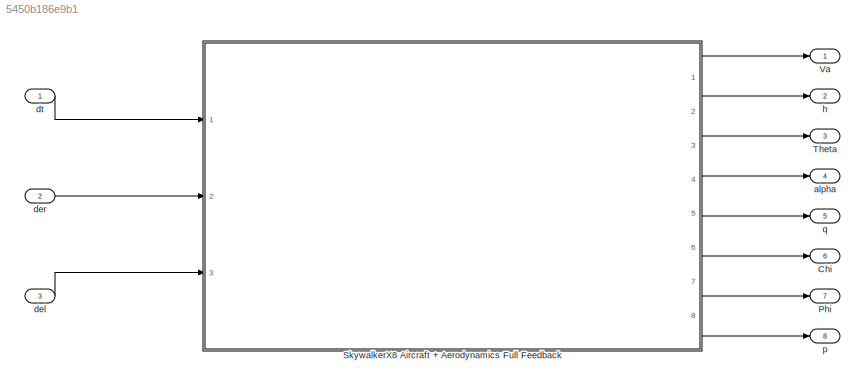
MODEL slx_5450b186e9b1
KIND model
CONFIG AbsTol = auto
CONFIG EnableMultiTasking = off
CONFIG FixedStep = 0.001
CONFIG MaxStep = auto
CONFIG MinStep = auto
CONFIG RelTol = 1e-3
CONFIG SampleTimeConstraint = Unconstrained
CONFIG Solver = FixedStepAuto
CONFIG SolverName = FixedStepAuto
CONFIG StartTime = 0.0
CONFIG StopTime = 10.0
BLOCK [Outport] Chi
  IconDisplay = Port number
  Port = 6
BLOCK [Outport] Phi
  IconDisplay = Port number
  Port = 7
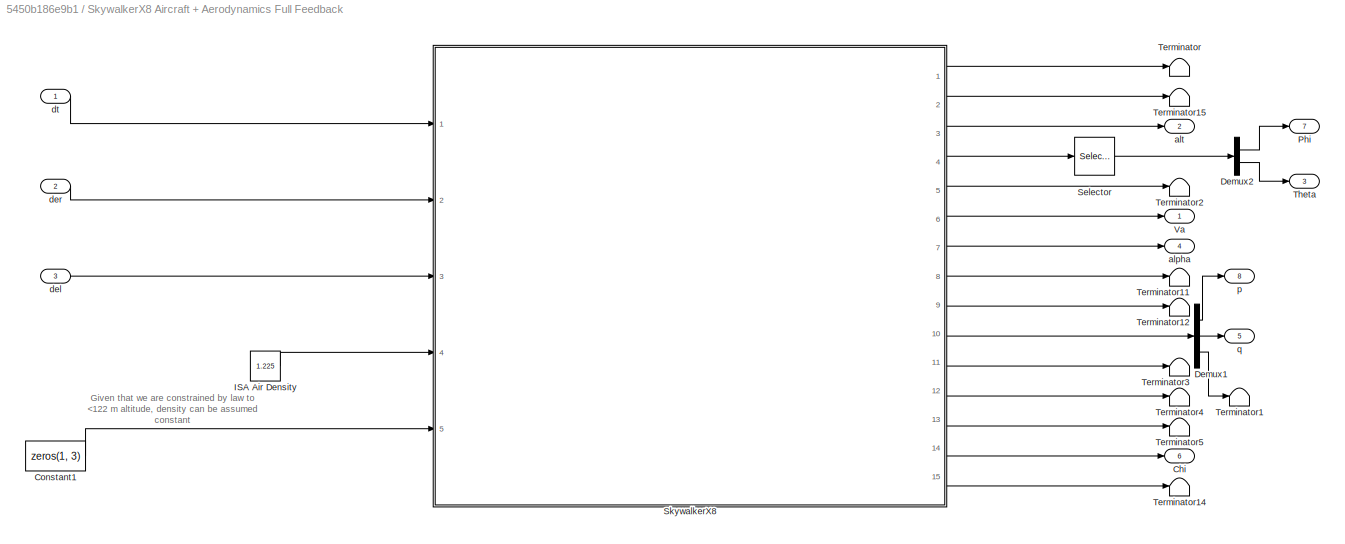
BLOCK [SubSystem] SkywalkerX8 Aircraft + Aerodynamics Full Feedback
  Ports = [3, 8]
  RequestExecContextInheritance = off
BLOCK [Outport] SkywalkerX8 Aircraft + Aerodynamics Full Feedback/Chi
  IconDisplay = Port number
  Port = 6
BLOCK [Constant] SkywalkerX8 Aircraft + Aerodynamics Full Feedback/Constant1
  Value = zeros(1, 3)
BLOCK [Demux] SkywalkerX8 Aircraft + Aerodynamics Full Feedback/Demux1
  DisplayOption = bar
  Outputs = 3
  Ports = [1, 3]
BLOCK [Demux] SkywalkerX8 Aircraft + Aerodynamics Full Feedback/Demux2
  DisplayOption = bar
  Outputs = 2
  Ports = [1, 2]
BLOCK [Constant] SkywalkerX8 Aircraft + Aerodynamics Full Feedback/ISA Air Density
  Value = 1.225
BLOCK [Outport] SkywalkerX8 Aircraft + Aerodynamics Full Feedback/Phi
  IconDisplay = Port number
  Port = 7
BLOCK [Selector] SkywalkerX8 Aircraft + Aerodynamics Full Feedback/Selector
  IndexOptions = Index vector (dialog)
  Indices = [1 2]
  InputPortWidth = 3
  OutputSizes = 1
  Ports = [1, 1]
BLOCK [ModelReference] SkywalkerX8 Aircraft + Aerodynamics Full Feedback/SkywalkerX8
  ModelNameDialog = SkywalkerX8_AircraftModel
  ModelReferenceVersion = 1.367
  Ports = [5, 15]
BLOCK [Terminator] SkywalkerX8 Aircraft + Aerodynamics Full Feedback/Terminator
BLOCK [Terminator] SkywalkerX8 Aircraft + Aerodynamics Full Feedback/Terminator1
BLOCK [Terminator] SkywalkerX8 Aircraft + Aerodynamics Full Feedback/Terminator11
BLOCK [Terminator] SkywalkerX8 Aircraft + Aerodynamics Full Feedback/Terminator12
BLOCK [Terminator] SkywalkerX8 Aircraft + Aerodynamics Full Feedback/Terminator14
BLOCK [Terminator] SkywalkerX8 Aircraft + Aerodynamics Full Feedback/Terminator15
BLOCK [Terminator] SkywalkerX8 Aircraft + Aerodynamics Full Feedback/Terminator2
BLOCK [Terminator] SkywalkerX8 Aircraft + Aerodynamics Full Feedback/Terminator3
BLOCK [Terminator] SkywalkerX8 Aircraft + Aerodynamics Full Feedback/Terminator4
BLOCK [Terminator] SkywalkerX8 Aircraft + Aerodynamics Full Feedback/Terminator5
BLOCK [Outport] SkywalkerX8 Aircraft + Aerodynamics Full Feedback/Theta
  IconDisplay = Port number
  Port = 3
BLOCK [Outport] SkywalkerX8 Aircraft + Aerodynamics Full Feedback/Va
  IconDisplay = Port number
BLOCK [Outport] SkywalkerX8 Aircraft + Aerodynamics Full Feedback/alpha
  IconDisplay = Port number
  Port = 4
BLOCK [Outport] SkywalkerX8 Aircraft + Aerodynamics Full Feedback/alt
  IconDisplay = Port number
  Port = 2
BLOCK [Inport] SkywalkerX8 Aircraft + Aerodynamics Full Feedback/del
  IconDisplay = Port number
  Port = 3
BLOCK [Inport] SkywalkerX8 Aircraft + Aerodynamics Full Feedback/der
  IconDisplay = Port number
  Port = 2
BLOCK [Inport] SkywalkerX8 Aircraft + Aerodynamics Full Feedback/dt
  IconDisplay = Port number
BLOCK [Outport] SkywalkerX8 Aircraft + Aerodynamics Full Feedback/p
  IconDisplay = Port number
  Port = 8
BLOCK [Outport] SkywalkerX8 Aircraft + Aerodynamics Full Feedback/q
  IconDisplay = Port number
  Port = 5
BLOCK [Outport] Theta
  IconDisplay = Port number
  Port = 3
BLOCK [Outport] Va
  IconDisplay = Port number
BLOCK [Outport] alpha
  IconDisplay = Port number
  Port = 4
BLOCK [Inport] del
  IconDisplay = Port number
  Port = 3
BLOCK [Inport] der
  IconDisplay = Port number
  Port = 2
BLOCK [Inport] dt
  IconDisplay = Port number
BLOCK [Outport] h
  IconDisplay = Port number
  Port = 2
BLOCK [Outport] p
  IconDisplay = Port number
  Port = 8
BLOCK [Outport] q
  IconDisplay = Port number
  Port = 5
ANNOTATION SkywalkerX8 Aircraft + Aerodynamics Full Feedback: Given that we are constrained by law to <122 m altitude, density can be assumed constant
LINE SkywalkerX8 Aircraft + Aerodynamics Full Feedback/Constant1:1 -> SkywalkerX8 Aircraft + Aerodynamics Full Feedback/SkywalkerX8:5
LINE SkywalkerX8 Aircraft + Aerodynamics Full Feedback/Demux1:1 -> SkywalkerX8 Aircraft + Aerodynamics Full Feedback/p:1
LINE SkywalkerX8 Aircraft + Aerodynamics Full Feedback/Demux1:2 -> SkywalkerX8 Aircraft + Aerodynamics Full Feedback/q:1
LINE SkywalkerX8 Aircraft + Aerodynamics Full Feedback/Demux1:3 -> SkywalkerX8 Aircraft + Aerodynamics Full Feedback/Terminator1:1
LINE SkywalkerX8 Aircraft + Aerodynamics Full Feedback/Demux2:1 -> SkywalkerX8 Aircraft + Aerodynamics Full Feedback/Phi:1
LINE SkywalkerX8 Aircraft + Aerodynamics Full Feedback/Demux2:2 -> SkywalkerX8 Aircraft + Aerodynamics Full Feedback/Theta:1
LINE SkywalkerX8 Aircraft + Aerodynamics Full Feedback/ISA Air Density:1 -> SkywalkerX8 Aircraft + Aerodynamics Full Feedback/SkywalkerX8:4
LINE SkywalkerX8 Aircraft + Aerodynamics Full Feedback/Selector:1 -> SkywalkerX8 Aircraft + Aerodynamics Full Feedback/Demux2:1
LINE SkywalkerX8 Aircraft + Aerodynamics Full Feedback/SkywalkerX8:1 -> SkywalkerX8 Aircraft + Aerodynamics Full Feedback/Terminator:1
LINE SkywalkerX8 Aircraft + Aerodynamics Full Feedback/SkywalkerX8:10 -> SkywalkerX8 Aircraft + Aerodynamics Full Feedback/Demux1:1
LINE SkywalkerX8 Aircraft + Aerodynamics Full Feedback/SkywalkerX8:11 -> SkywalkerX8 Aircraft + Aerodynamics Full Feedback/Terminator3:1
LINE SkywalkerX8 Aircraft + Aerodynamics Full Feedback/SkywalkerX8:12 -> SkywalkerX8 Aircraft + Aerodynamics Full Feedback/Terminator4:1
LINE SkywalkerX8 Aircraft + Aerodynamics Full Feedback/SkywalkerX8:13 -> SkywalkerX8 Aircraft + Aerodynamics Full Feedback/Terminator5:1
LINE SkywalkerX8 Aircraft + Aerodynamics Full Feedback/SkywalkerX8:14 -> SkywalkerX8 Aircraft + Aerodynamics Full Feedback/Chi:1
LINE SkywalkerX8 Aircraft + Aerodynamics Full Feedback/SkywalkerX8:15 -> SkywalkerX8 Aircraft + Aerodynamics Full Feedback/Terminator14:1
LINE SkywalkerX8 Aircraft + Aerodynamics Full Feedback/SkywalkerX8:2 -> SkywalkerX8 Aircraft + Aerodynamics Full Feedback/Terminator15:1
LINE SkywalkerX8 Aircraft + Aerodynamics Full Feedback/SkywalkerX8:3 -> SkywalkerX8 Aircraft + Aerodynamics Full Feedback/alt:1
LINE SkywalkerX8 Aircraft + Aerodynamics Full Feedback/SkywalkerX8:4 -> SkywalkerX8 Aircraft + Aerodynamics Full Feedback/Selector:1
LINE SkywalkerX8 Aircraft + Aerodynamics Full Feedback/SkywalkerX8:5 -> SkywalkerX8 Aircraft + Aerodynamics Full Feedback/Terminator2:1
LINE SkywalkerX8 Aircraft + Aerodynamics Full Feedback/SkywalkerX8:6 -> SkywalkerX8 Aircraft + Aerodynamics Full Feedback/Va:1
LINE SkywalkerX8 Aircraft + Aerodynamics Full Feedback/SkywalkerX8:7 -> SkywalkerX8 Aircraft + Aerodynamics Full Feedback/alpha:1
LINE SkywalkerX8 Aircraft + Aerodynamics Full Feedback/SkywalkerX8:8 -> SkywalkerX8 Aircraft + Aerodynamics Full Feedback/Terminator11:1
LINE SkywalkerX8 Aircraft + Aerodynamics Full Feedback/SkywalkerX8:9 -> SkywalkerX8 Aircraft + Aerodynamics Full Feedback/Terminator12:1
LINE SkywalkerX8 Aircraft + Aerodynamics Full Feedback/del:1 -> SkywalkerX8 Aircraft + Aerodynamics Full Feedback/SkywalkerX8:3
LINE SkywalkerX8 Aircraft + Aerodynamics Full Feedback/der:1 -> SkywalkerX8 Aircraft + Aerodynamics Full Feedback/SkywalkerX8:2
LINE SkywalkerX8 Aircraft + Aerodynamics Full Feedback/dt:1 -> SkywalkerX8 Aircraft + Aerodynamics Full Feedback/SkywalkerX8:1
LINE SkywalkerX8 Aircraft + Aerodynamics Full Feedback:1 -> Va:1
LINE SkywalkerX8 Aircraft + Aerodynamics Full Feedback:2 -> h:1
LINE SkywalkerX8 Aircraft + Aerodynamics Full Feedback:3 -> Theta:1
LINE SkywalkerX8 Aircraft + Aerodynamics Full Feedback:4 -> alpha:1
LINE SkywalkerX8 Aircraft + Aerodynamics Full Feedback:5 -> q:1
LINE SkywalkerX8 Aircraft + Aerodynamics Full Feedback:6 -> Chi:1
LINE SkywalkerX8 Aircraft + Aerodynamics Full Feedback:7 -> Phi:1
LINE SkywalkerX8 Aircraft + Aerodynamics Full Feedback:8 -> p:1
LINE del:1 -> SkywalkerX8 Aircraft + Aerodynamics Full Feedback:3
LINE der:1 -> SkywalkerX8 Aircraft + Aerodynamics Full Feedback:2
LINE dt:1 -> SkywalkerX8 Aircraft + Aerodynamics Full Feedback:1
